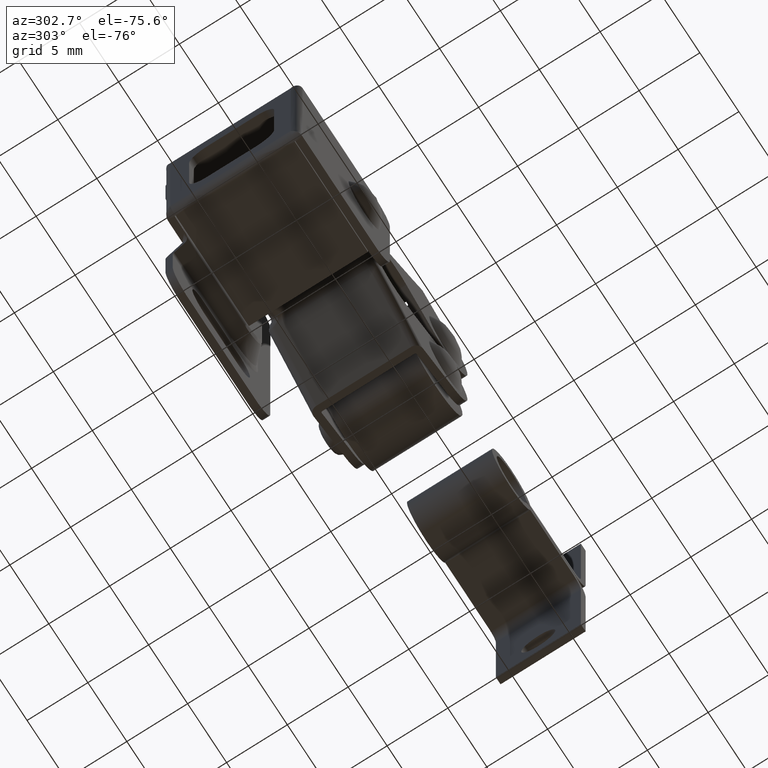
[diagram: clean part render]
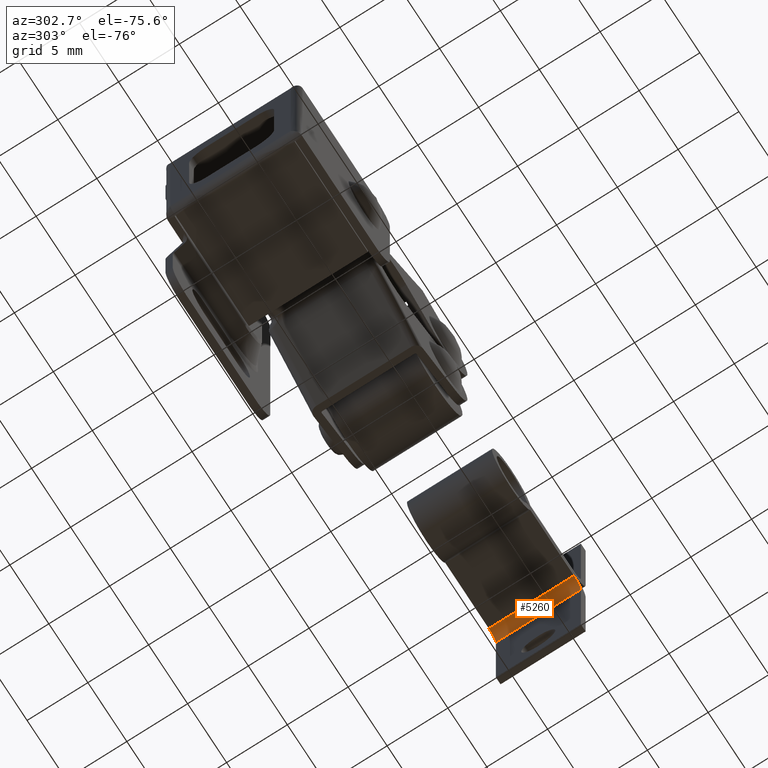
[diagram: same view with one face highlighted and labeled with its STEP entity id]
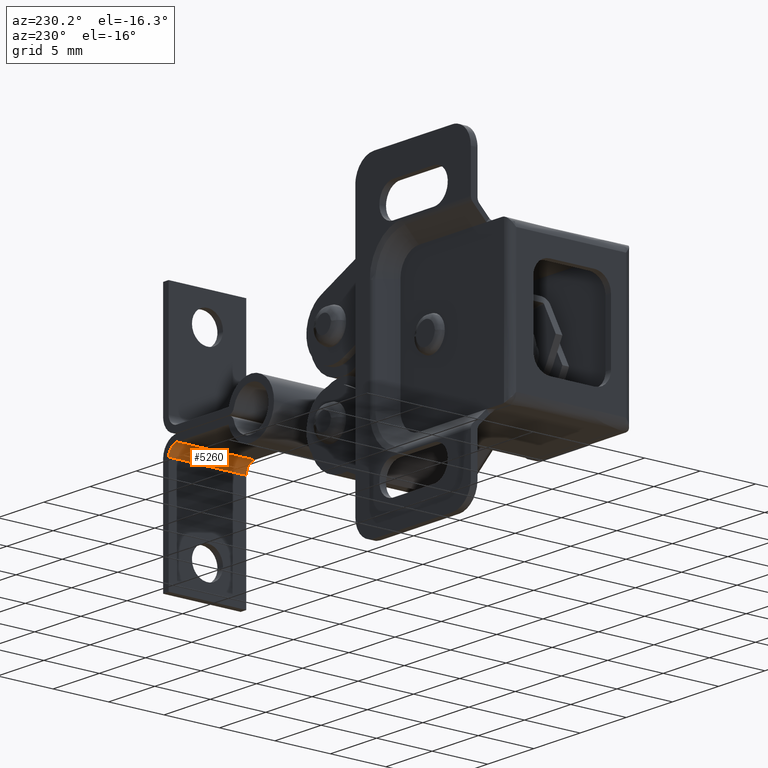
[diagram: same view with one face highlighted and labeled with its STEP entity id]
A machine part, auxiliary view. The second image highlights one B-rep face of the part: STEP entity #5260.
A second angle (auxiliary view) of the same face is appended — the face is thin or edge-on in the first view.
In plain terms, the highlighted face is a freeform B-spline surface patch.
Its self-contained STEP definition (entity closure, byte-faithful):
#4650=CARTESIAN_POINT('',(29.799995999999901,-10.499995999999960,-10.625006000000120));
#4651=VERTEX_POINT('',#4650);
#4657=CARTESIAN_POINT('',(30.700005000000100,-10.499995999999960,-11.525006000000120));
#4658=VERTEX_POINT('',#4657);
#4659=CARTESIAN_POINT('',(30.700005000000100,-10.499995999999960,-11.525006000000120));
#4660=CARTESIAN_POINT('',(30.700005000000107,-10.499995999999959,-11.152211157822574));
#4661=CARTESIAN_POINT('',(30.436397921079450,-10.499995999999960,-10.888606714959600));
#4662=CARTESIAN_POINT('',(30.172790842158808,-10.499995999999959,-10.625002272096616));
#4663=CARTESIAN_POINT('',(29.799995999999901,-10.499995999999960,-10.625006000000120));
#4671=(BOUNDED_CURVE()B_SPLINE_CURVE(2,(#4659,#4660,#4661,#4662,#4663),.UNSPECIFIED.,.F.,.U.)B_SPLINE_CURVE_WITH_KNOTS((3,2,3),(0.0,0.500000000000000,1.0),.UNSPECIFIED.)CURVE()GEOMETRIC_REPRESENTATION_ITEM()RATIONAL_B_SPLINE_CURVE((1.0,0.923878575799797,1.0,0.923878575799797,1.0))REPRESENTATION_ITEM(''));
#4672=EDGE_CURVE('',#4658,#4651,#4671,.T.);
#4914=CARTESIAN_POINT('',(30.700005000000100,-3.499996000000060,-11.525006000000120));
#4915=VERTEX_POINT('',#4914);
#4921=CARTESIAN_POINT('',(29.799995999999901,-3.499996000000060,-10.625006000000120));
#4922=VERTEX_POINT('',#4921);
#4923=CARTESIAN_POINT('',(30.700005000000100,-3.499996000000060,-11.525006000000120));
#4924=CARTESIAN_POINT('',(30.700005000000107,-3.499996000000059,-11.152211157822574));
#4925=CARTESIAN_POINT('',(30.436397921079450,-3.499996000000060,-10.888606714959600));
#4926=CARTESIAN_POINT('',(30.172790842158808,-3.499996000000059,-10.625002272096616));
#4927=CARTESIAN_POINT('',(29.799995999999901,-3.499996000000060,-10.625006000000120));
#4935=(BOUNDED_CURVE()B_SPLINE_CURVE(2,(#4923,#4924,#4925,#4926,#4927),.UNSPECIFIED.,.F.,.U.)B_SPLINE_CURVE_WITH_KNOTS((3,2,3),(0.0,0.500000000000000,1.0),.UNSPECIFIED.)CURVE()GEOMETRIC_REPRESENTATION_ITEM()RATIONAL_B_SPLINE_CURVE((1.0,0.923878575799797,1.0,0.923878575799797,1.0))REPRESENTATION_ITEM(''));
#4936=EDGE_CURVE('',#4915,#4922,#4935,.T.);
#5220=CARTESIAN_POINT('',(30.700005000000100,-3.499996000000060,-11.525006000000120));
#5221=CARTESIAN_POINT('',(30.700005000000100,-10.499995999999960,-11.525006000000120));
#5222=QUASI_UNIFORM_CURVE('',1,(#5220,#5221),.UNSPECIFIED.,.F.,.U.);
#5223=EDGE_CURVE('',#4915,#4658,#5222,.T.);
#5236=CARTESIAN_POINT('',(29.776436749608070,-3.324996000000062,-10.625314643159641));
#5237=CARTESIAN_POINT('',(29.776436749608070,-10.679370999999961,-10.625314643159641));
#5238=CARTESIAN_POINT('',(30.758277575666618,-3.324996000000062,-10.599594411151482));
#5239=CARTESIAN_POINT('',(30.758277575666618,-10.679370999999957,-10.599594411151482));
#5240=CARTESIAN_POINT('',(30.698326867971730,-3.324996000000062,-11.579940702365350));
#5241=CARTESIAN_POINT('',(30.698326867971730,-10.679370999999961,-11.579940702365350));
#5249=(BOUNDED_SURFACE()B_SPLINE_SURFACE(1,2,((#5236,#5238,#5240),(#5237,#5239,#5241)),.UNSPECIFIED.,.F.,.F.,.U.)B_SPLINE_SURFACE_WITH_KNOTS((2,2),(3,3),(0.0,7.354374999999895),(0.0,1.0),.UNSPECIFIED.)GEOMETRIC_REPRESENTATION_ITEM()RATIONAL_B_SPLINE_SURFACE(((1.0,0.675590207615660,1.0),(1.0,0.675590207615660,1.0)))REPRESENTATION_ITEM('')SURFACE());
#5250=ORIENTED_EDGE('',*,*,#4672,.T.);
#5251=CARTESIAN_POINT('',(29.799995999999901,-3.499996000000060,-10.625006000000120));
#5252=CARTESIAN_POINT('',(29.799995999999901,-10.499995999999960,-10.625006000000120));
#5253=QUASI_UNIFORM_CURVE('',1,(#5251,#5252),.UNSPECIFIED.,.F.,.U.);
#5254=EDGE_CURVE('',#4922,#4651,#5253,.T.);
#5255=ORIENTED_EDGE('',*,*,#5254,.F.);
#5256=ORIENTED_EDGE('',*,*,#4936,.F.);
#5257=ORIENTED_EDGE('',*,*,#5223,.T.);
#5258=EDGE_LOOP('',(#5250,#5255,#5256,#5257));
#5259=FACE_OUTER_BOUND('',#5258,.T.);
#5260=ADVANCED_FACE('',(#5259),#5249,.F.);